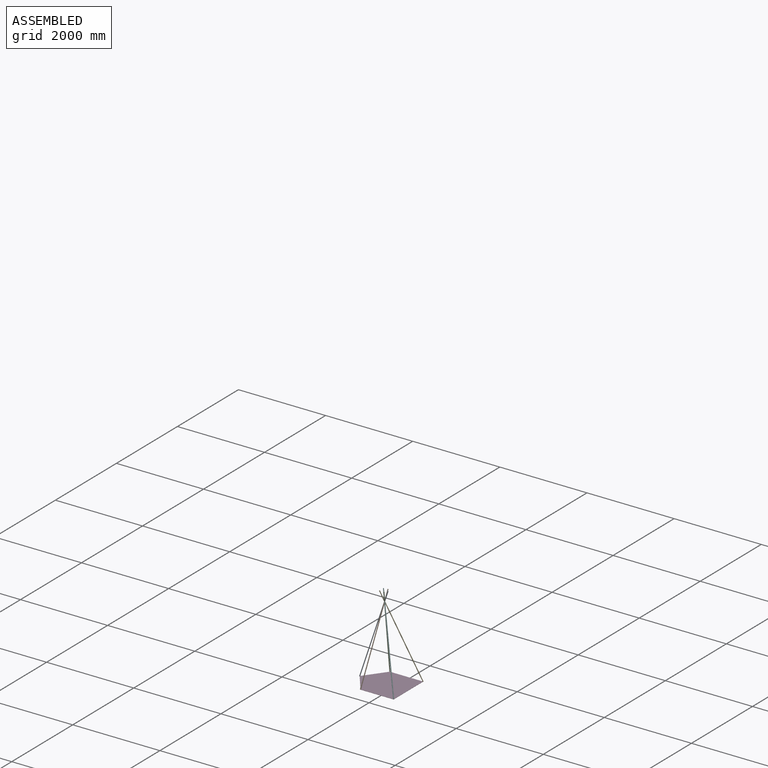
[diagram: assembled view]
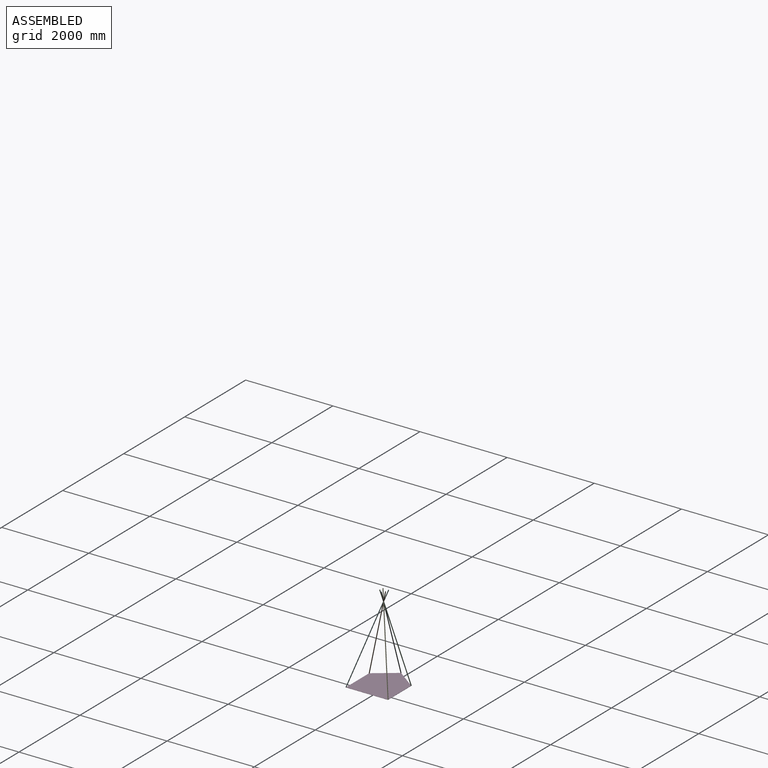
[diagram: assembled view, second angle]
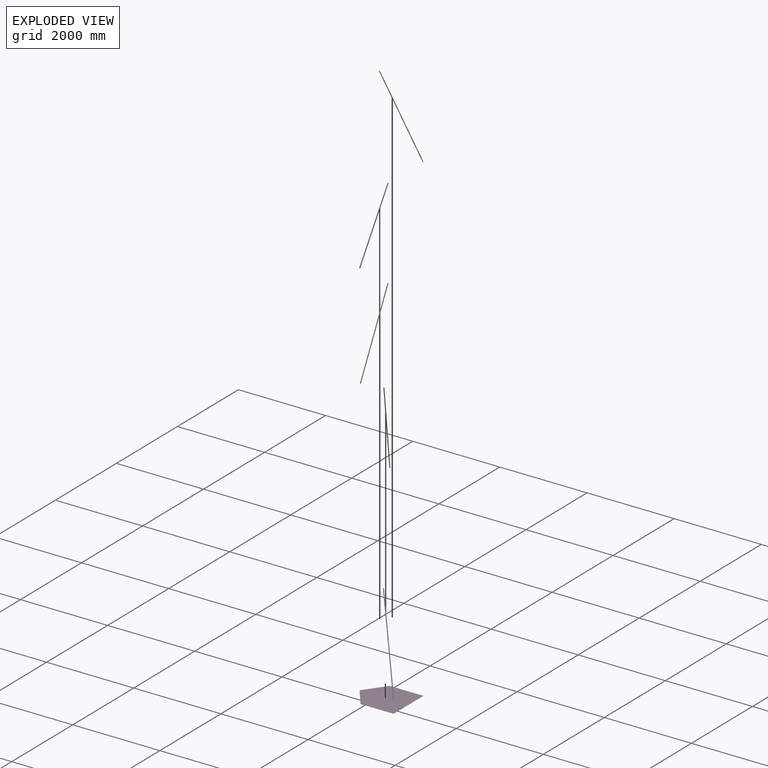
[diagram: exploded view]
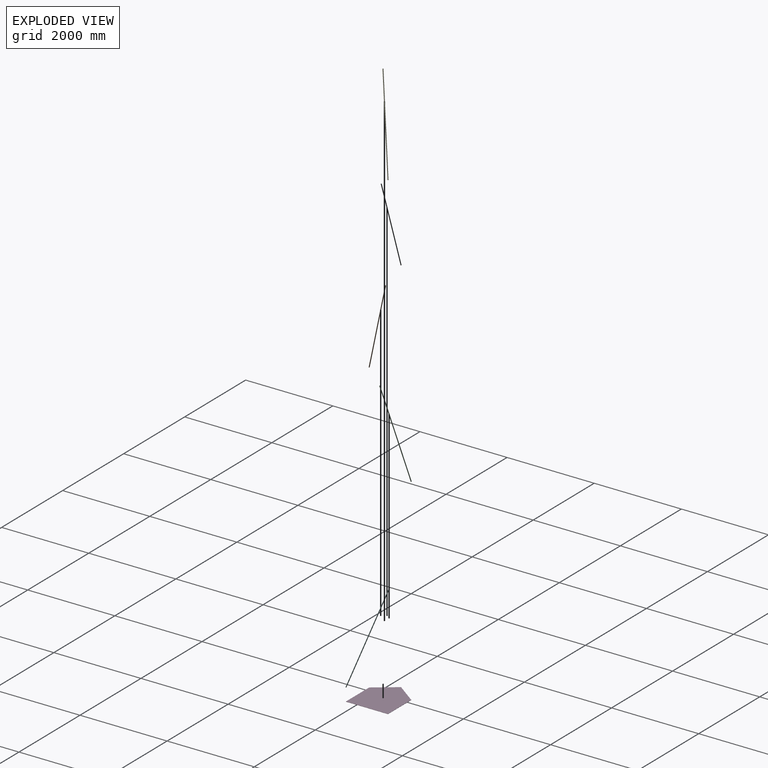
[diagram: exploded view, second angle]
ASSEMBLY  parts=6 mates=8
PART A: 4 faces, bbox 2045.2x19.1x19.1 mm
  f0: cylinder r=9.53mm len=2045.21mm, axis (-1,0,0), area 122252.8mm2, adj f1,f2,f3
  f1: plane 19.05x19.05mm, normal (1,0,0), area 285mm2, adj f0
  f2: plane 19.05x19.05mm, normal (-1,0,0), area 285mm2, adj f0
  f3: cylinder r=4.76mm len=19.05mm, axis (0,0,1), area 532.5mm2, adj f0
PART B: 4 faces, bbox 2030x19.1x19.1 mm
  f0: cylinder r=9.53mm len=2029.97mm, axis (-1,0,0), area 121340.7mm2, adj f1,f2,f3
  f1: plane 19.05x19.05mm, normal (1,0,0), area 285mm2, adj f0
  f2: plane 19.05x19.05mm, normal (-1,0,0), area 285mm2, adj f0
  f3: cylinder r=4.76mm len=19.05mm, axis (0,0,-1), area 532.5mm2, adj f0
PART C: same geometry as B
PART D: 7 faces, bbox 1117.6x965.2x5 mm
  f0: plane 762x5mm, normal (0,-1,0), area 3810mm2, adj f1,f4,f5,f6
  f1: plane 965.2x5mm, normal (1,0,0), area 4826mm2, adj f0,f2,f5,f6
  f2: plane 762x5mm, normal (0,1,0), area 3810mm2, adj f1,f3,f5,f6
  f3: plane 482.6x355.6mm, normal (-0.81,0.59,0), area 2997.3mm2, adj f2,f4,f5,f6
  f4: plane 482.6x355.6mm, normal (-0.81,-0.59,0), area 2997.3mm2, adj f0,f3,f5,f6
  f5: plane 1117.6x965.2mm, normal (0,0,1), area 907095mm2, adj f0,f1,f2,f3,f4
  f6: plane 1117.6x965.2mm, normal (0,0,-1), area 907095mm2, adj f0,f1,f2,f3,f4
PART E: 4 faces, bbox 2100x19.1x19.1 mm
  f0: cylinder r=9.53mm len=2100mm, axis (-1,0,0), area 125532.3mm2, adj f1,f2,f3
  f1: plane 19.05x19.05mm, normal (1,0,0), area 285mm2, adj f0
  f2: plane 19.05x19.05mm, normal (-1,0,0), area 285mm2, adj f0
  f3: cylinder r=4.76mm len=19.05mm, axis (0,1,0), area 532.6mm2, adj f0
PART F: same geometry as E
PLACE A rot(axis=(-0.53,-0.76,-0.38),86.7deg) t=(-411.87,281.26,138.17)mm
PLACE B rot(axis=(-0.65,-0.64,-0.41),120.3deg) t=(-56.27,-201.34,143.17)mm
PLACE C rot(axis=(-0.3,-0.81,-0.5),87.8deg) t=(-56.27,763.86,143.17)mm
PLACE D t=(-56.27,-201.34,138.17)mm fixed
PLACE E rot(axis=(-0.37,-0.62,-0.69),119.6deg) t=(705.73,763.86,143.17)mm
PLACE F rot(axis=(0.34,-0.66,0.67),117.8deg) t=(705.73,-201.34,143.17)mm
MATE ball D.f5 <-> C.f0  axis (0,0,1) through (-56.27,763.86,143.17)mm
MATE ball D.f5 <-> E.f0  axis (0,0,1) through (705.73,763.86,143.17)mm
MATE ball A.f3 <-> F.f3  axis (-0.57,0.8,0.19) through (161.86,281.26,1844.29)mm
MATE ball F.f0 <-> D.f5  axis (0.29,-0.26,-0.92) through (705.73,-201.34,143.17)mm
MATE ball B.f3 <-> C.f3  axis (0.16,-0.96,0.25) through (161.29,281.26,1842.63)mm
MATE ball D.f6 <-> A.f0  axis (0,0,-1) through (-411.87,281.26,138.17)mm
MATE ball E.f3 <-> F.f3  axis (0.94,0.09,0.33) through (161.86,281.26,1844.29)mm
MATE ball D.f5 <-> B.f0  axis (0,0,1) through (-56.27,-201.34,143.17)mm
